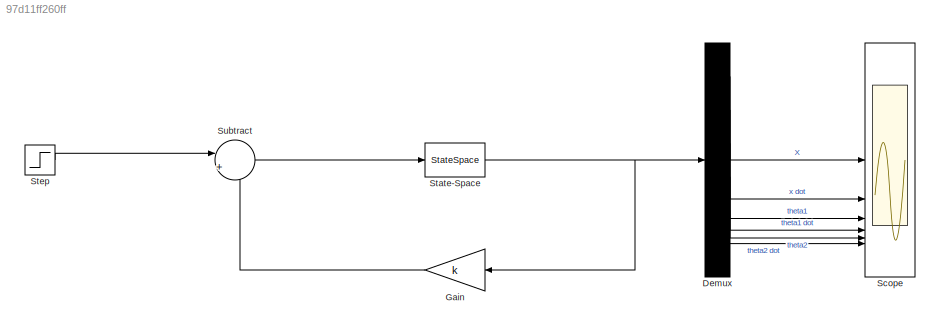
MODEL slx_97d11ff260ff
KIND model
CONFIG AbsTol = auto
CONFIG EnableMultiTasking = off
CONFIG FixedStep = auto
CONFIG MaxStep = auto
CONFIG MinStep = auto
CONFIG RelTol = 1e-3
CONFIG SampleTimeConstraint = Unconstrained
CONFIG SolverName = VariableStepAuto
CONFIG StartTime = 0.0
CONFIG StopTime = 10.0
BLOCK [Demux] Demux
  Outputs = 6
BLOCK [Gain] Gain
  Gain = k
  Multiplication = Matrix(K*u) (u vector)
  NameLocation = top
BLOCK [Scope] Scope
  Floating = off
  NumInputPorts = 6
  ScopeSpecificationString = Simulink.scopes.TimeScopeBlockCfg('CurrentConfiguration', extmgr.ConfigurationSet(extmgr.Configuration('Core','General UI',true),extmgr.Configuration('Core','Source UI',true),extmgr.Configuration('Sources','WiredSimulink',true),extmgr.Configuration('Visuals','Time Domain',true,'SerializedDisplays',{struct('MinYLimReal','-0.0323','MaxYLimReal','0.2667','YLabelReal','','MinYLimMag','0.00000','MaxYLi...<+4742ch>
BLOCK [StateSpace] State-Space
  A = A_eval
  B = B_eval
  C = eye(6)
  D = zeros(6,1)
  InitialCondition = [0.05 0 0.05 0 0.05 0]
BLOCK [Step] Step
  After = 0
  Before = 0.05
  SampleTime = 0
BLOCK [Sum] Subtract
  Inputs = |+-
LINE Demux:1 -> Scope:1
LINE Demux:2 -> Scope:2
LINE Demux:3 -> Scope:3
LINE Demux:4 -> Scope:4
LINE Demux:5 -> Scope:5
LINE Demux:6 -> Scope:6
LINE Gain:1 -> Subtract:2
NET State-Space:1 -> Demux:1, Gain:1
LINE Step:1 -> Subtract:1
LINE Subtract:1 -> State-Space:1
note: NET lines group one-source signal fan-out (src -> all destinations, sorted); 1:1 wires keep LINE
